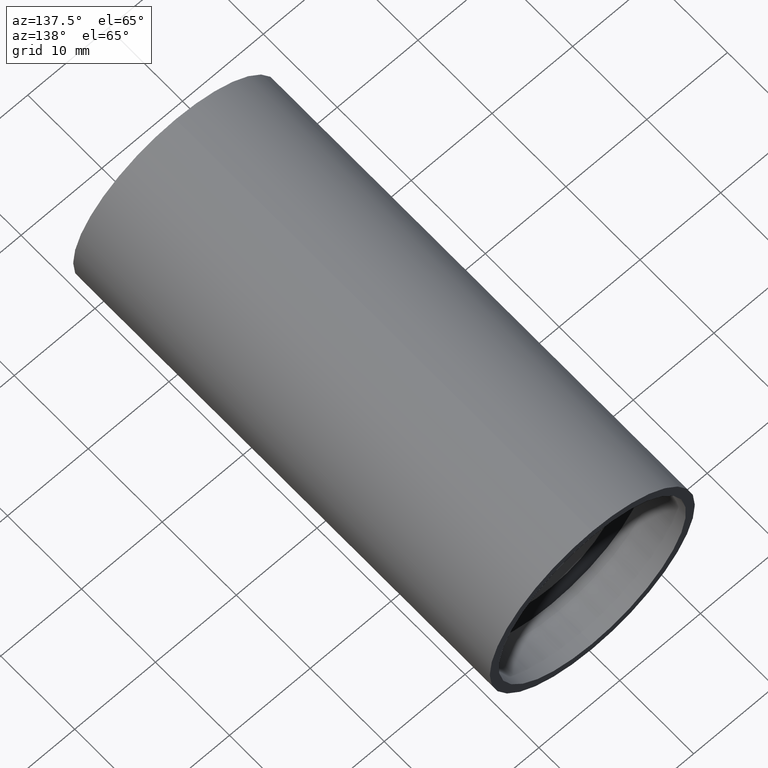
[diagram: clean part render]
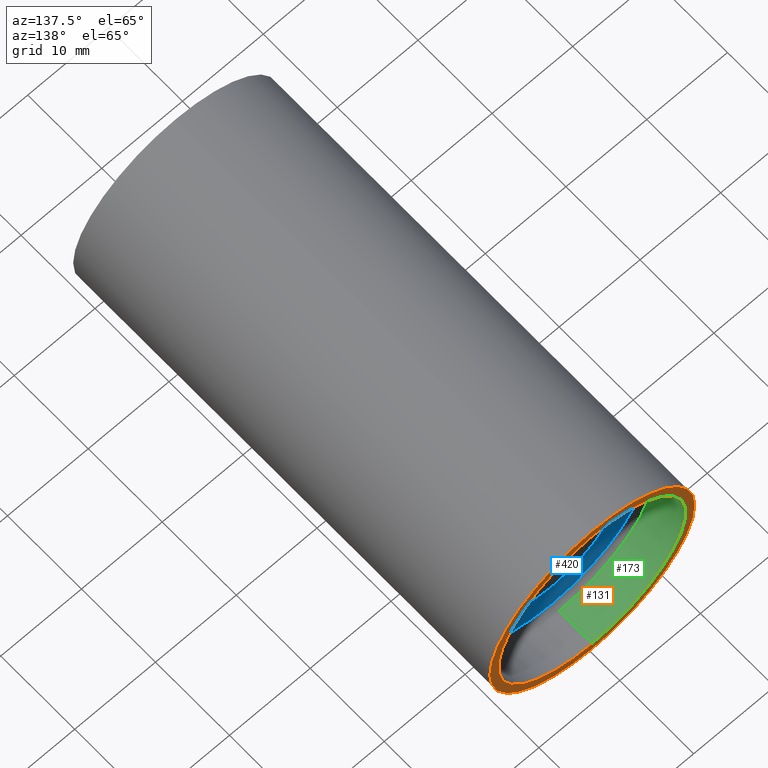
[diagram: same view with three faces highlighted in distinct colors, each labeled with its STEP entity id]
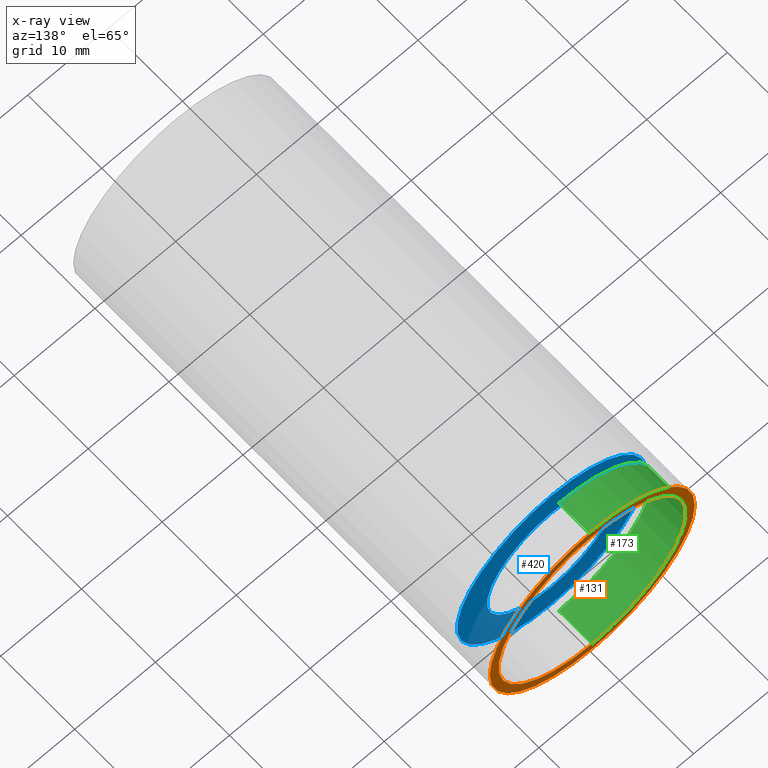
[diagram: x-ray of the same camera — body ghosted, the three highlighted faces saturated]
A machine part, auxiliary view with three faces highlighted in distinct colors.
The next image is the same camera in x-ray (body ghosted, the three faces saturated) — at least one of them is partly hidden behind the body in this view.
Their STEP definitions:

[orange] entity #131 — the highlighted planar face has unit normal (0, -1, 0).
#12 = CARTESIAN_POINT ( 'NONE',  ( 0.0000000000000000000, 56.29999999999999000, 0.0000000000000000000 ) ) ;
#34 = CARTESIAN_POINT ( 'NONE',  ( 0.0000000000000000000, 56.29999999999999000, 12.70000000000001900 ) ) ;
#72 = FACE_BOUND ( 'NONE', #162, .T. ) ;
#79 = CARTESIAN_POINT ( 'NONE',  ( 0.0000000000000000000, 56.29999999999999000, 0.0000000000000000000 ) ) ;
#92 = EDGE_CURVE ( 'NONE', #97, #400, #605, .T. ) ;
#97 = VERTEX_POINT ( 'NONE', #291 ) ;
#103 = CIRCLE ( 'NONE', #416, 11.60000000000003200 ) ;
#106 = CIRCLE ( 'NONE', #137, 12.70000000000001900 ) ;
#115 = EDGE_CURVE ( 'NONE', #400, #97, #103, .T. ) ;
#117 = DIRECTION ( 'NONE',  ( -0.0000000000000000000, 1.000000000000000000, -0.0000000000000000000 ) ) ;
#131 = ADVANCED_FACE ( 'NONE', ( #72, #313 ), #406, .F. ) ;
#137 = AXIS2_PLACEMENT_3D ( 'NONE', #567, #172, #181 ) ;
#161 = ORIENTED_EDGE ( 'NONE', *, *, #92, .F. ) ;
#162 = EDGE_LOOP ( 'NONE', ( #161, #586 ) ) ;
#172 = DIRECTION ( 'NONE',  ( -0.0000000000000000000, 1.000000000000000000, -0.0000000000000000000 ) ) ;
#177 = CARTESIAN_POINT ( 'NONE',  ( 1.555301434917140800E-015, 56.29999999999999000, -12.70000000000001900 ) ) ;
#181 = DIRECTION ( 'NONE',  ( 0.0000000000000000000, 0.0000000000000000000, 1.000000000000000000 ) ) ;
#207 = DIRECTION ( 'NONE',  ( 0.0000000000000000000, 0.0000000000000000000, 1.000000000000000000 ) ) ;
#239 = EDGE_CURVE ( 'NONE', #248, #286, #106, .T. ) ;
#243 = ORIENTED_EDGE ( 'NONE', *, *, #335, .T. ) ;
#248 = VERTEX_POINT ( 'NONE', #177 ) ;
#286 = VERTEX_POINT ( 'NONE', #34 ) ;
#291 = CARTESIAN_POINT ( 'NONE',  ( 0.0000000000000000000, 56.29999999999999000, 11.60000000000003200 ) ) ;
#293 = AXIS2_PLACEMENT_3D ( 'NONE', #12, #117, #397 ) ;
#313 = FACE_OUTER_BOUND ( 'NONE', #449, .T. ) ;
#334 = ORIENTED_EDGE ( 'NONE', *, *, #239, .T. ) ;
#335 = EDGE_CURVE ( 'NONE', #286, #248, #441, .T. ) ;
#349 = DIRECTION ( 'NONE',  ( 0.0000000000000000000, -1.000000000000000000, 0.0000000000000000000 ) ) ;
#353 = DIRECTION ( 'NONE',  ( -0.0000000000000000000, 1.000000000000000000, -0.0000000000000000000 ) ) ;
#397 = DIRECTION ( 'NONE',  ( 0.0000000000000000000, 0.0000000000000000000, 1.000000000000000000 ) ) ;
#400 = VERTEX_POINT ( 'NONE', #589 ) ;
#406 = PLANE ( 'NONE',  #591 ) ;
#416 = AXIS2_PLACEMENT_3D ( 'NONE', #79, #353, #207 ) ;
#441 = CIRCLE ( 'NONE', #293, 12.70000000000001900 ) ;
#449 = EDGE_LOOP ( 'NONE', ( #243, #334 ) ) ;
#459 = CARTESIAN_POINT ( 'NONE',  ( 11.60000000000003200, 56.29999999999998300, 0.0000000000000000000 ) ) ;
#493 = CARTESIAN_POINT ( 'NONE',  ( 0.0000000000000000000, 56.29999999999999000, 0.0000000000000000000 ) ) ;
#505 = DIRECTION ( 'NONE',  ( 0.0000000000000000000, -0.0000000000000000000, -1.000000000000000000 ) ) ;
#539 = DIRECTION ( 'NONE',  ( -0.0000000000000000000, 1.000000000000000000, -0.0000000000000000000 ) ) ;
#550 = AXIS2_PLACEMENT_3D ( 'NONE', #493, #539, #588 ) ;
#567 = CARTESIAN_POINT ( 'NONE',  ( 0.0000000000000000000, 56.29999999999999000, 0.0000000000000000000 ) ) ;
#586 = ORIENTED_EDGE ( 'NONE', *, *, #115, .F. ) ;
#588 = DIRECTION ( 'NONE',  ( 0.0000000000000000000, 0.0000000000000000000, 1.000000000000000000 ) ) ;
#589 = CARTESIAN_POINT ( 'NONE',  ( 1.420590287010933700E-015, 56.29999999999999000, -11.60000000000003200 ) ) ;
#591 = AXIS2_PLACEMENT_3D ( 'NONE', #459, #349, #505 ) ;
#605 = CIRCLE ( 'NONE', #550, 11.60000000000003200 ) ;

[blue] entity #420 — the highlighted planar face has unit normal (0, -1, 0).
#8 = EDGE_CURVE ( 'NONE', #96, #45, #528, .T. ) ;
#20 = EDGE_CURVE ( 'NONE', #45, #96, #521, .T. ) ;
#29 = DIRECTION ( 'NONE',  ( 0.0000000000000000000, 0.0000000000000000000, 1.000000000000000000 ) ) ;
#45 = VERTEX_POINT ( 'NONE', #148 ) ;
#65 = DIRECTION ( 'NONE',  ( -0.0000000000000000000, 1.000000000000000000, -0.0000000000000000000 ) ) ;
#73 = DIRECTION ( 'NONE',  ( 0.0000000000000000000, -1.000000000000000000, 0.0000000000000000000 ) ) ;
#78 = PLANE ( 'NONE',  #303 ) ;
#96 = VERTEX_POINT ( 'NONE', #452 ) ;
#102 = EDGE_LOOP ( 'NONE', ( #569, #430 ) ) ;
#105 = DIRECTION ( 'NONE',  ( 0.0000000000000000000, 0.0000000000000000000, 1.000000000000000000 ) ) ;
#108 = VERTEX_POINT ( 'NONE', #194 ) ;
#148 = CARTESIAN_POINT ( 'NONE',  ( 0.0000000000000000000, 50.79999999999998300, 8.000000000000019500 ) ) ;
#190 = AXIS2_PLACEMENT_3D ( 'NONE', #371, #279, #427 ) ;
#194 = CARTESIAN_POINT ( 'NONE',  ( 1.432836755002404700E-015, 50.79999999999998300, -11.70000000000001000 ) ) ;
#199 = DIRECTION ( 'NONE',  ( 0.0000000000000000000, 0.0000000000000000000, 1.000000000000000000 ) ) ;
#205 = DIRECTION ( 'NONE',  ( 0.0000000000000000000, -0.0000000000000000000, -1.000000000000000000 ) ) ;
#214 = CARTESIAN_POINT ( 'NONE',  ( 8.000000000000019500, 50.79999999999997600, 0.0000000000000000000 ) ) ;
#245 = EDGE_CURVE ( 'NONE', #108, #616, #525, .T. ) ;
#250 = AXIS2_PLACEMENT_3D ( 'NONE', #388, #285, #105 ) ;
#277 = CARTESIAN_POINT ( 'NONE',  ( 0.0000000000000000000, 50.79999999999998300, 11.70000000000001000 ) ) ;
#279 = DIRECTION ( 'NONE',  ( -0.0000000000000000000, 1.000000000000000000, -0.0000000000000000000 ) ) ;
#285 = DIRECTION ( 'NONE',  ( -0.0000000000000000000, 1.000000000000000000, -0.0000000000000000000 ) ) ;
#292 = CARTESIAN_POINT ( 'NONE',  ( 0.0000000000000000000, 50.79999999999998300, 0.0000000000000000000 ) ) ;
#303 = AXIS2_PLACEMENT_3D ( 'NONE', #214, #73, #205 ) ;
#371 = CARTESIAN_POINT ( 'NONE',  ( 0.0000000000000000000, 50.79999999999998300, 0.0000000000000000000 ) ) ;
#372 = ORIENTED_EDGE ( 'NONE', *, *, #8, .F. ) ;
#388 = CARTESIAN_POINT ( 'NONE',  ( 0.0000000000000000000, 50.79999999999998300, 0.0000000000000000000 ) ) ;
#401 = EDGE_CURVE ( 'NONE', #616, #108, #619, .T. ) ;
#414 = CARTESIAN_POINT ( 'NONE',  ( 0.0000000000000000000, 50.79999999999998300, 0.0000000000000000000 ) ) ;
#420 = ADVANCED_FACE ( 'NONE', ( #623, #540 ), #78, .F. ) ;
#427 = DIRECTION ( 'NONE',  ( 0.0000000000000000000, 0.0000000000000000000, 1.000000000000000000 ) ) ;
#430 = ORIENTED_EDGE ( 'NONE', *, *, #245, .T. ) ;
#434 = ORIENTED_EDGE ( 'NONE', *, *, #20, .F. ) ;
#452 = CARTESIAN_POINT ( 'NONE',  ( 9.797174393178849300E-016, 50.79999999999998300, -8.000000000000019500 ) ) ;
#461 = DIRECTION ( 'NONE',  ( -0.0000000000000000000, 1.000000000000000000, -0.0000000000000000000 ) ) ;
#469 = AXIS2_PLACEMENT_3D ( 'NONE', #292, #65, #199 ) ;
#501 = EDGE_LOOP ( 'NONE', ( #434, #372 ) ) ;
#521 = CIRCLE ( 'NONE', #469, 8.000000000000019500 ) ;
#522 = AXIS2_PLACEMENT_3D ( 'NONE', #414, #461, #29 ) ;
#525 = CIRCLE ( 'NONE', #190, 11.70000000000001000 ) ;
#528 = CIRCLE ( 'NONE', #250, 8.000000000000019500 ) ;
#540 = FACE_OUTER_BOUND ( 'NONE', #102, .T. ) ;
#569 = ORIENTED_EDGE ( 'NONE', *, *, #401, .T. ) ;
#616 = VERTEX_POINT ( 'NONE', #277 ) ;
#619 = CIRCLE ( 'NONE', #522, 11.70000000000001000 ) ;
#623 = FACE_BOUND ( 'NONE', #501, .T. ) ;

[green] entity #173 — the highlighted cylindrical surface (partial cylindrical patch) has radius 11.6 mm, axis along (-0, 1, -0).
#13 = CARTESIAN_POINT ( 'NONE',  ( 0.0000000000000000000, 161.3761669434274500, 11.60000000000003300 ) ) ;
#30 = CIRCLE ( 'NONE', #336, 11.60000000000003300 ) ;
#64 = VERTEX_POINT ( 'NONE', #342 ) ;
#74 = DIRECTION ( 'NONE',  ( 0.0000000000000000000, 0.0000000000000000000, 1.000000000000000000 ) ) ;
#79 = CARTESIAN_POINT ( 'NONE',  ( 0.0000000000000000000, 56.29999999999999000, 0.0000000000000000000 ) ) ;
#88 = CYLINDRICAL_SURFACE ( 'NONE', #538, 11.60000000000003300 ) ;
#97 = VERTEX_POINT ( 'NONE', #291 ) ;
#101 = EDGE_CURVE ( 'NONE', #64, #97, #411, .T. ) ;
#103 = CIRCLE ( 'NONE', #416, 11.60000000000003200 ) ;
#115 = EDGE_CURVE ( 'NONE', #400, #97, #103, .T. ) ;
#123 = CARTESIAN_POINT ( 'NONE',  ( 1.420590287010933900E-015, 161.3761669434274500, -11.60000000000003300 ) ) ;
#149 = ORIENTED_EDGE ( 'NONE', *, *, #115, .T. ) ;
#166 = CARTESIAN_POINT ( 'NONE',  ( 0.0000000000000000000, 161.3761669434274500, 0.0000000000000000000 ) ) ;
#173 = ADVANCED_FACE ( 'NONE', ( #381 ), #88, .F. ) ;
#207 = DIRECTION ( 'NONE',  ( 0.0000000000000000000, 0.0000000000000000000, 1.000000000000000000 ) ) ;
#217 = ORIENTED_EDGE ( 'NONE', *, *, #438, .T. ) ;
#254 = LINE ( 'NONE', #123, #288 ) ;
#288 = VECTOR ( 'NONE', #552, 1000.000000000000000 ) ;
#291 = CARTESIAN_POINT ( 'NONE',  ( 0.0000000000000000000, 56.29999999999999000, 11.60000000000003200 ) ) ;
#326 = DIRECTION ( 'NONE',  ( 0.0000000000000000000, 0.0000000000000000000, 1.000000000000000000 ) ) ;
#331 = VECTOR ( 'NONE', #346, 1000.000000000000000 ) ;
#336 = AXIS2_PLACEMENT_3D ( 'NONE', #425, #517, #326 ) ;
#342 = CARTESIAN_POINT ( 'NONE',  ( 0.0000000000000000000, 51.79999999999998300, 11.60000000000003300 ) ) ;
#346 = DIRECTION ( 'NONE',  ( -0.0000000000000000000, 1.000000000000000000, -0.0000000000000000000 ) ) ;
#348 = EDGE_LOOP ( 'NONE', ( #604, #217, #149, #533 ) ) ;
#353 = DIRECTION ( 'NONE',  ( -0.0000000000000000000, 1.000000000000000000, -0.0000000000000000000 ) ) ;
#381 = FACE_OUTER_BOUND ( 'NONE', #348, .T. ) ;
#392 = VERTEX_POINT ( 'NONE', #393 ) ;
#393 = CARTESIAN_POINT ( 'NONE',  ( 1.420590287010933900E-015, 51.79999999999998300, -11.60000000000003300 ) ) ;
#400 = VERTEX_POINT ( 'NONE', #589 ) ;
#411 = LINE ( 'NONE', #13, #331 ) ;
#416 = AXIS2_PLACEMENT_3D ( 'NONE', #79, #353, #207 ) ;
#425 = CARTESIAN_POINT ( 'NONE',  ( 0.0000000000000000000, 51.79999999999998300, 0.0000000000000000000 ) ) ;
#438 = EDGE_CURVE ( 'NONE', #392, #400, #254, .T. ) ;
#512 = DIRECTION ( 'NONE',  ( -0.0000000000000000000, 1.000000000000000000, -0.0000000000000000000 ) ) ;
#517 = DIRECTION ( 'NONE',  ( -0.0000000000000000000, 1.000000000000000000, -0.0000000000000000000 ) ) ;
#533 = ORIENTED_EDGE ( 'NONE', *, *, #101, .F. ) ;
#538 = AXIS2_PLACEMENT_3D ( 'NONE', #166, #512, #74 ) ;
#552 = DIRECTION ( 'NONE',  ( -0.0000000000000000000, 1.000000000000000000, -0.0000000000000000000 ) ) ;
#579 = EDGE_CURVE ( 'NONE', #392, #64, #30, .T. ) ;
#589 = CARTESIAN_POINT ( 'NONE',  ( 1.420590287010933700E-015, 56.29999999999999000, -11.60000000000003200 ) ) ;
#604 = ORIENTED_EDGE ( 'NONE', *, *, #579, .F. ) ;